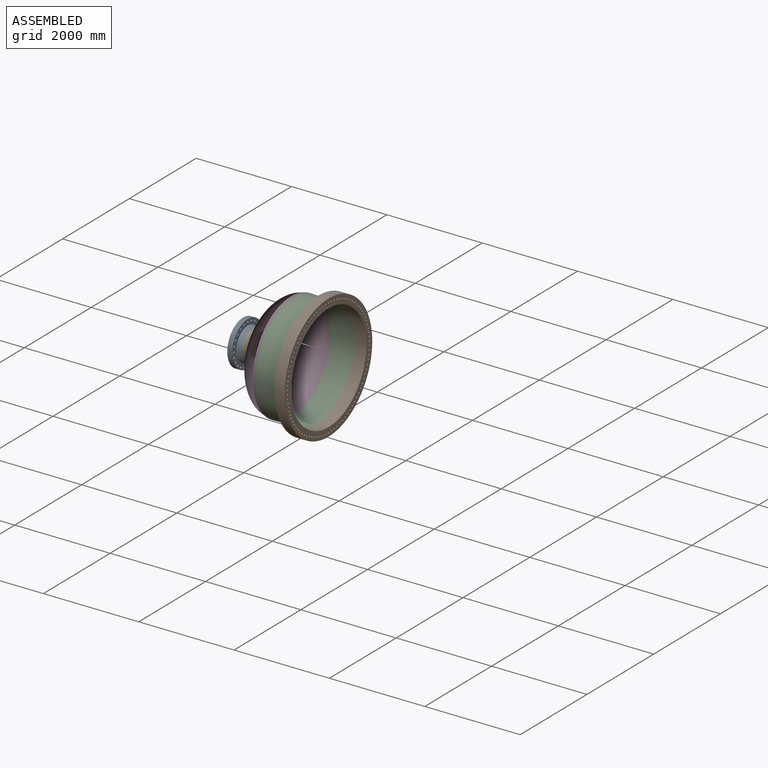
[diagram: assembled view]
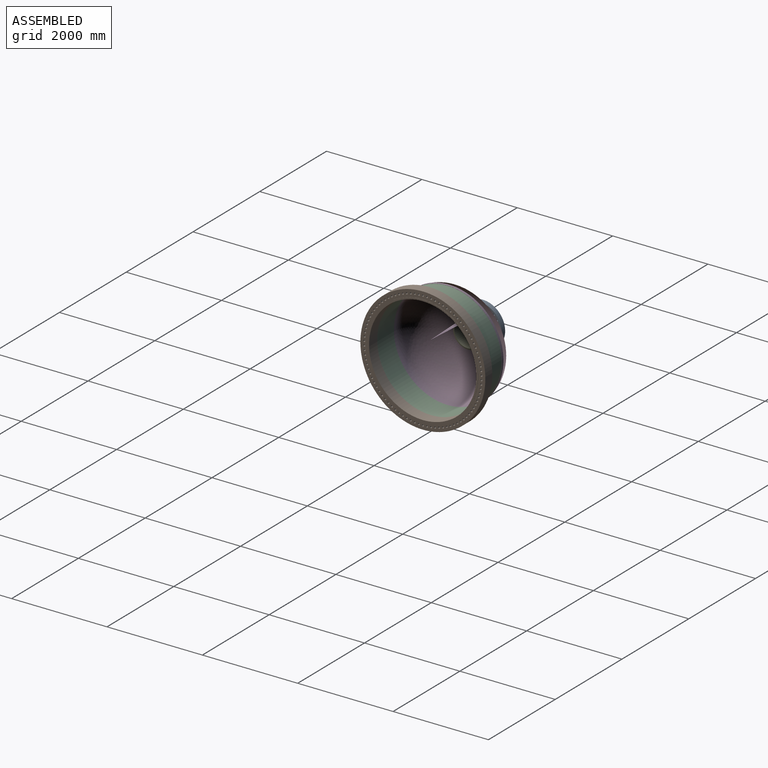
[diagram: assembled view, second angle]
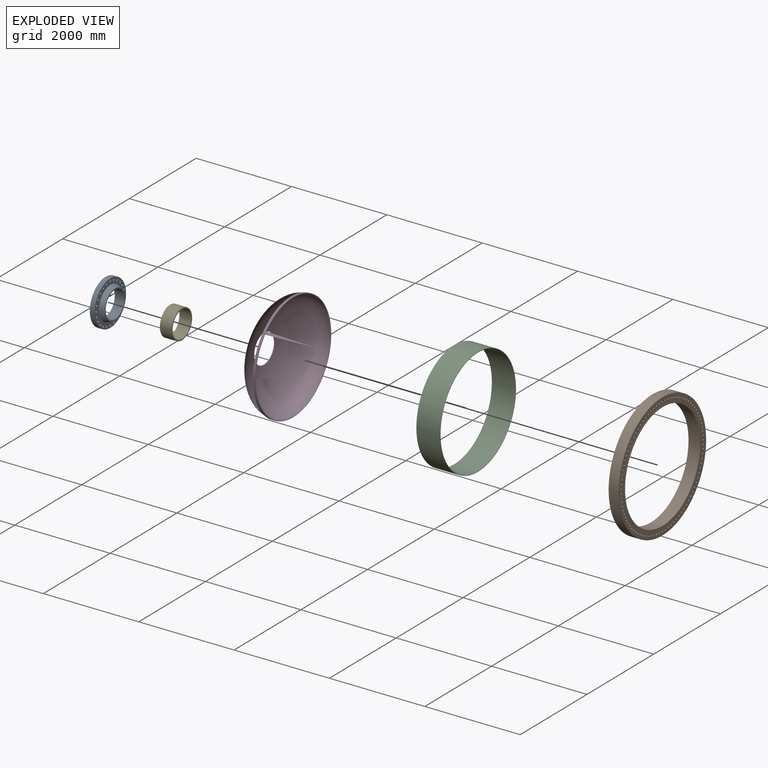
[diagram: exploded view]
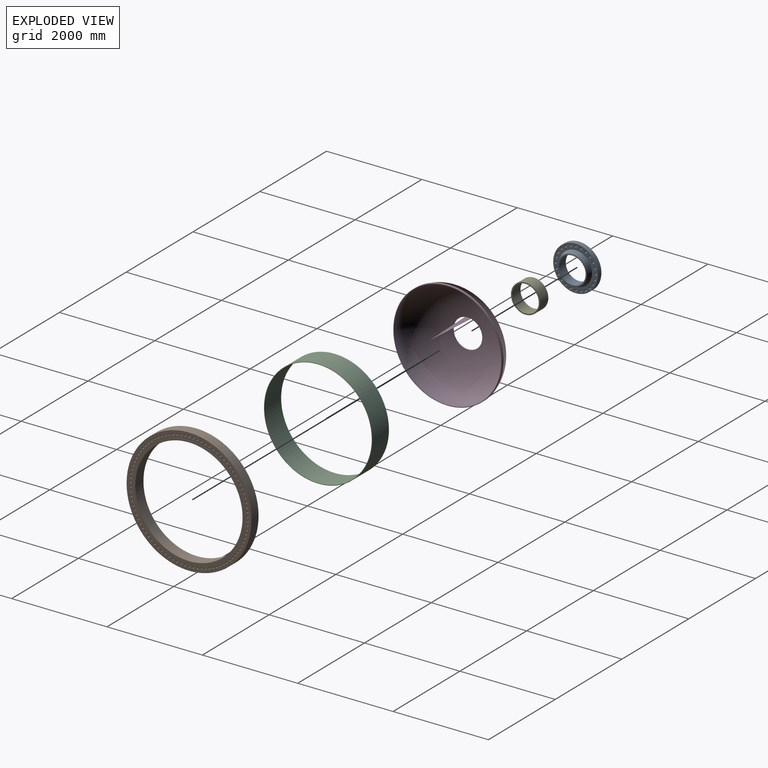
[diagram: exploded view, second angle]
ASSEMBLY  parts=5 mates=4
PART A: 32 faces, bbox 203.2x940x940 mm
  f0: cylinder r=280.2mm len=560.4mm, axis (-1,0,0), area 357743.5mm2, adj f1,f7
  f1: plane 609.4x609.4mm, normal (1,0,0), area 45019.2mm2, adj f0,f2
  f2: cone r=304.7mm half-angle=22.2deg, axis (-1,0,0), area 217412.8mm2, adj f1,f3
  f3: plane 940x940mm, normal (1,0,0), area 271022.1mm2, adj f2,f4,f8,f9,f10,f11,f12,f13
  f4: cylinder r=470mm len=940mm, axis (-1,0,0), area 300034.7mm2, adj f3,f5
  f5: plane 940x940mm, normal (-1,0,0), area 268851.2mm2, adj f4,f6,f8,f9,f10,f11,f12,f13
  f6: cylinder r=346mm len=692mm, axis (-1,0,0), area 6521.9mm2, adj f5,f7
  f7: plane 692x692mm, normal (-1,0,0), area 129446.1mm2, adj f0,f6
  f8: cylinder r=25.5mm len=101.6mm, axis (-1,0,0), area 16278.5mm2, adj f3,f5
  f9: cylinder r=25.5mm len=101.6mm, axis (-1,0,0), area 16278.5mm2, adj f3,f5
  f10: cylinder r=25.5mm len=101.6mm, axis (-1,0,0), area 16278.5mm2, adj f3,f5
  f11: cylinder r=25.5mm len=101.6mm, axis (-1,0,0), area 16278.5mm2, adj f3,f5
  f12: cylinder r=25.5mm len=101.6mm, axis (-1,0,0), area 16278.5mm2, adj f3,f5
  f13: cylinder r=25.5mm len=101.6mm, axis (-1,0,0), area 16278.5mm2, adj f3,f5
  f14: cylinder r=25.5mm len=101.6mm, axis (-1,0,0), area 16278.5mm2, adj f3,f5
  f15: cylinder r=25.5mm len=101.6mm, axis (-1,0,0), area 16278.5mm2, adj f3,f5
  f16: cylinder r=25.5mm len=101.6mm, axis (-1,0,0), area 16278.5mm2, adj f3,f5
  f17: cylinder r=25.5mm len=101.6mm, axis (-1,0,0), area 16278.5mm2, adj f3,f5
  f18: cylinder r=25.5mm len=101.6mm, axis (-1,0,0), area 16278.5mm2, adj f3,f5
  f19: cylinder r=25.5mm len=101.6mm, axis (-1,0,0), area 16278.5mm2, adj f3,f5
  f20: cylinder r=25.5mm len=101.6mm, axis (-1,0,0), area 16278.5mm2, adj f3,f5
  f21: cylinder r=25.5mm len=101.6mm, axis (-1,0,0), area 16278.5mm2, adj f3,f5
  f22: cylinder r=25.5mm len=101.6mm, axis (-1,0,0), area 16278.5mm2, adj f3,f5
  f23: cylinder r=25.5mm len=101.6mm, axis (-1,0,0), area 16278.5mm2, adj f3,f5
  f24: cylinder r=25.5mm len=101.6mm, axis (-1,0,0), area 16278.5mm2, adj f3,f5
  f25: cylinder r=25.5mm len=101.6mm, axis (-1,0,0), area 16278.5mm2, adj f3,f5
  f26: cylinder r=25.5mm len=101.6mm, axis (-1,0,0), area 16278.5mm2, adj f3,f5
  f27: cylinder r=25.5mm len=101.6mm, axis (-1,0,0), area 16278.5mm2, adj f3,f5
  f28: cylinder r=25.5mm len=101.6mm, axis (-1,0,0), area 16278.5mm2, adj f3,f5
  f29: cylinder r=25.5mm len=101.6mm, axis (-1,0,0), area 16278.5mm2, adj f3,f5
  f30: cylinder r=25.5mm len=101.6mm, axis (-1,0,0), area 16278.5mm2, adj f3,f5
  f31: cylinder r=25.5mm len=101.6mm, axis (-1,0,0), area 16278.5mm2, adj f3,f5
PART B: 98 faces, bbox 245x2620x2620 mm
  f0: plane 2320x2320mm, normal (-1,0,0), area 251248.9mm2, adj f1,f7
  f1: cylinder r=1125mm len=2250mm, axis (-1,0,0), area 1731803mm2, adj f0,f2
  f2: plane 2270x2270mm, normal (1,0,0), area 71000mm2, adj f1,f3
  f3: cone r=1135mm half-angle=26.6deg, axis (-1,0,0), area 240775.5mm2, adj f2,f4
  f4: plane 2620x2620mm, normal (1,0,0), area 1123433.5mm2, adj f3,f5,f8,f9,f10,f11,f12,f13
  f5: cylinder r=1310mm len=2620mm, axis (-1,0,0), area 1728504.3mm2, adj f4,f6
  f6: plane 2620x2620mm, normal (-1,0,0), area 1050862.7mm2, adj f5,f7,f8,f9,f10,f11,f12,f13
  f7: cylinder r=1160mm len=2320mm, axis (-1,0,0), area 36442.5mm2, adj f0,f6
  f8: cylinder r=20mm len=210mm, axis (-1,0,0), area 26389.4mm2, adj f4,f6
  f9: cylinder r=20mm len=210mm, axis (-1,0,0), area 26389.4mm2, adj f4,f6
  f10: cylinder r=20mm len=210mm, axis (-1,0,0), area 26389.4mm2, adj f4,f6
  f11: cylinder r=20mm len=210mm, axis (-1,0,0), area 26389.4mm2, adj f4,f6
  f12: cylinder r=20mm len=210mm, axis (-1,0,0), area 26389.4mm2, adj f4,f6
  f13: cylinder r=20mm len=210mm, axis (-1,0,0), area 26389.4mm2, adj f4,f6
  f14: cylinder r=20mm len=210mm, axis (-1,0,0), area 26389.4mm2, adj f4,f6
  f15: cylinder r=20mm len=210mm, axis (-1,0,0), area 26389.4mm2, adj f4,f6
  f16: cylinder r=20mm len=210mm, axis (-1,0,0), area 26389.4mm2, adj f4,f6
  f17: cylinder r=20mm len=210mm, axis (-1,0,0), area 26389.4mm2, adj f4,f6
  f18: cylinder r=20mm len=210mm, axis (-1,0,0), area 26389.4mm2, adj f4,f6
  f19: cylinder r=20mm len=210mm, axis (-1,0,0), area 26389.4mm2, adj f4,f6
  f20: cylinder r=20mm len=210mm, axis (-1,0,0), area 26389.4mm2, adj f4,f6
  f21: cylinder r=20mm len=210mm, axis (-1,0,0), area 26389.4mm2, adj f4,f6
  f22: cylinder r=20mm len=210mm, axis (-1,0,0), area 26389.4mm2, adj f4,f6
  f23: cylinder r=20mm len=210mm, axis (-1,0,0), area 26389.4mm2, adj f4,f6
  f24: cylinder r=20mm len=210mm, axis (-1,0,0), area 26389.4mm2, adj f4,f6
  f25: cylinder r=20mm len=210mm, axis (-1,0,0), area 26389.4mm2, adj f4,f6
  f26: cylinder r=20mm len=210mm, axis (-1,0,0), area 26389.4mm2, adj f4,f6
  f27: cylinder r=20mm len=210mm, axis (-1,0,0), area 26389.4mm2, adj f4,f6
  f28: cylinder r=20mm len=210mm, axis (-1,0,0), area 26389.4mm2, adj f4,f6
  f29: cylinder r=20mm len=210mm, axis (-1,0,0), area 26389.4mm2, adj f4,f6
  f30: cylinder r=20mm len=210mm, axis (-1,0,0), area 26389.4mm2, adj f4,f6
  f31: cylinder r=20mm len=210mm, axis (-1,0,0), area 26389.4mm2, adj f4,f6
  f32: cylinder r=20mm len=210mm, axis (-1,0,0), area 26389.4mm2, adj f4,f6
  f33: cylinder r=20mm len=210mm, axis (-1,0,0), area 26389.4mm2, adj f4,f6
  f34: cylinder r=20mm len=210mm, axis (-1,0,0), area 26389.4mm2, adj f4,f6
  f35: cylinder r=20mm len=210mm, axis (-1,0,0), area 26389.4mm2, adj f4,f6
  f36: cylinder r=20mm len=210mm, axis (-1,0,0), area 26389.4mm2, adj f4,f6
  f37: cylinder r=20mm len=210mm, axis (-1,0,0), area 26389.4mm2, adj f4,f6
  f38: cylinder r=20mm len=210mm, axis (-1,0,0), area 26389.4mm2, adj f4,f6
  f39: cylinder r=20mm len=210mm, axis (-1,0,0), area 26389.4mm2, adj f4,f6
  f40: cylinder r=20mm len=210mm, axis (-1,0,0), area 26389.4mm2, adj f4,f6
  f41: cylinder r=20mm len=210mm, axis (-1,0,0), area 26389.4mm2, adj f4,f6
  f42: cylinder r=20mm len=210mm, axis (-1,0,0), area 26389.4mm2, adj f4,f6
  f43: cylinder r=20mm len=210mm, axis (-1,0,0), area 26389.4mm2, adj f4,f6
  f44: cylinder r=20mm len=210mm, axis (-1,0,0), area 26389.4mm2, adj f4,f6
  f45: cylinder r=20mm len=210mm, axis (-1,0,0), area 26389.4mm2, adj f4,f6
  f46: cylinder r=20mm len=210mm, axis (-1,0,0), area 26389.4mm2, adj f4,f6
  f47: cylinder r=20mm len=210mm, axis (-1,0,0), area 26389.4mm2, adj f4,f6
  f48: cylinder r=20mm len=210mm, axis (-1,0,0), area 26389.4mm2, adj f4,f6
  f49: cylinder r=20mm len=210mm, axis (-1,0,0), area 26389.4mm2, adj f4,f6
  f50: cylinder r=20mm len=210mm, axis (-1,0,0), area 26389.4mm2, adj f4,f6
  f51: cylinder r=20mm len=210mm, axis (-1,0,0), area 26389.4mm2, adj f4,f6
  f52: cylinder r=20mm len=210mm, axis (-1,0,0), area 26389.4mm2, adj f4,f6
  f53: cylinder r=20mm len=210mm, axis (-1,0,0), area 26389.4mm2, adj f4,f6
  f54: cylinder r=20mm len=210mm, axis (-1,0,0), area 26389.4mm2, adj f4,f6
  f55: cylinder r=20mm len=210mm, axis (-1,0,0), area 26389.4mm2, adj f4,f6
  f56: cylinder r=20mm len=210mm, axis (-1,0,0), area 26389.4mm2, adj f4,f6
  f57: cylinder r=20mm len=210mm, axis (-1,0,0), area 26389.4mm2, adj f4,f6
  f58: cylinder r=20mm len=210mm, axis (-1,0,0), area 26389.4mm2, adj f4,f6
  f59: cylinder r=20mm len=210mm, axis (-1,0,0), area 26389.4mm2, adj f4,f6
  f60: cylinder r=20mm len=210mm, axis (-1,0,0), area 26389.4mm2, adj f4,f6
  f61: cylinder r=20mm len=210mm, axis (-1,0,0), area 26389.4mm2, adj f4,f6
  f62: cylinder r=20mm len=210mm, axis (-1,0,0), area 26389.4mm2, adj f4,f6
  f63: cylinder r=20mm len=210mm, axis (-1,0,0), area 26389.4mm2, adj f4,f6
  f64: cylinder r=20mm len=210mm, axis (-1,0,0), area 26389.4mm2, adj f4,f6
  f65: cylinder r=20mm len=210mm, axis (-1,0,0), area 26389.4mm2, adj f4,f6
  f66: cylinder r=20mm len=210mm, axis (-1,0,0), area 26389.4mm2, adj f4,f6
  f67: cylinder r=20mm len=210mm, axis (-1,0,0), area 26389.4mm2, adj f4,f6
  f68: cylinder r=20mm len=210mm, axis (-1,0,0), area 26389.4mm2, adj f4,f6
  f69: cylinder r=20mm len=210mm, axis (-1,0,0), area 26389.4mm2, adj f4,f6
  f70: cylinder r=20mm len=210mm, axis (-1,0,0), area 26389.4mm2, adj f4,f6
  f71: cylinder r=20mm len=210mm, axis (-1,0,0), area 26389.4mm2, adj f4,f6
  f72: cylinder r=20mm len=210mm, axis (-1,0,0), area 26389.4mm2, adj f4,f6
  f73: cylinder r=20mm len=210mm, axis (-1,0,0), area 26389.4mm2, adj f4,f6
  f74: cylinder r=20mm len=210mm, axis (-1,0,0), area 26389.4mm2, adj f4,f6
  f75: cylinder r=20mm len=210mm, axis (-1,0,0), area 26389.4mm2, adj f4,f6
  f76: cylinder r=20mm len=210mm, axis (-1,0,0), area 26389.4mm2, adj f4,f6
  f77: cylinder r=20mm len=210mm, axis (-1,0,0), area 26389.4mm2, adj f4,f6
  f78: cylinder r=20mm len=210mm, axis (-1,0,0), area 26389.4mm2, adj f4,f6
  f79: cylinder r=20mm len=210mm, axis (-1,0,0), area 26389.4mm2, adj f4,f6
  f80: cylinder r=20mm len=210mm, axis (-1,0,0), area 26389.4mm2, adj f4,f6
  f81: cylinder r=20mm len=210mm, axis (-1,0,0), area 26389.4mm2, adj f4,f6
  f82: cylinder r=20mm len=210mm, axis (-1,0,0), area 26389.4mm2, adj f4,f6
  f83: cylinder r=20mm len=210mm, axis (-1,0,0), area 26389.4mm2, adj f4,f6
  f84: cylinder r=20mm len=210mm, axis (-1,0,0), area 26389.4mm2, adj f4,f6
  f85: cylinder r=20mm len=210mm, axis (-1,0,0), area 26389.4mm2, adj f4,f6
  f86: cylinder r=20mm len=210mm, axis (-1,0,0), area 26389.4mm2, adj f4,f6
  f87: cylinder r=20mm len=210mm, axis (-1,0,0), area 26389.4mm2, adj f4,f6
  f88: cylinder r=20mm len=210mm, axis (-1,0,0), area 26389.4mm2, adj f4,f6
  f89: cylinder r=20mm len=210mm, axis (-1,0,0), area 26389.4mm2, adj f4,f6
  f90: cylinder r=20mm len=210mm, axis (-1,0,0), area 26389.4mm2, adj f4,f6
  f91: cylinder r=20mm len=210mm, axis (-1,0,0), area 26389.4mm2, adj f4,f6
  f92: cylinder r=20mm len=210mm, axis (-1,0,0), area 26389.4mm2, adj f4,f6
  f93: cylinder r=20mm len=210mm, axis (-1,0,0), area 26389.4mm2, adj f4,f6
  f94: cylinder r=20mm len=210mm, axis (-1,0,0), area 26389.4mm2, adj f4,f6
  f95: cylinder r=20mm len=210mm, axis (-1,0,0), area 26389.4mm2, adj f4,f6
  f96: cylinder r=20mm len=210mm, axis (-1,0,0), area 26389.4mm2, adj f4,f6
  f97: cylinder r=20mm len=210mm, axis (-1,0,0), area 26389.4mm2, adj f4,f6
PART C: 4 faces, bbox 500x2270x2270 mm
  f0: cylinder r=1125mm len=2250mm, axis (-1,0,0), area 3534291.7mm2, adj f1,f3
  f1: plane 2270x2270mm, normal (1,0,0), area 71000mm2, adj f0,f2
  f2: cylinder r=1135mm len=2270mm, axis (-1,0,0), area 3565707.7mm2, adj f1,f3
  f3: plane 2270x2270mm, normal (-1,0,0), area 71000mm2, adj f0,f2
PART D: 6 faces, bbox 616.2x2276x2276 mm
  f0: cylinder r=1125mm len=2250mm, axis (-1,0,0), area 353429.2mm2, adj f1,f2
  f1: revolved ~2250x2250mm, area 5241527.6mm2, adj f0,f3
  f2: plane 2276x2276mm, normal (1,0,0), area 92422.5mm2, adj f0,f4
  f3: cylinder r=304.8mm len=609.6mm, axis (-1,0,0), area 25151mm2, adj f1
  f4: cylinder r=1138mm len=2276mm, axis (-1,0,0), area 357513.2mm2, adj f2,f5
  f5: revolved ~2274.71x1137.68mm, area 0mm2, adj f4
PART E: 4 faces, bbox 250x609.6x609.6 mm
  f0: cylinder r=280.2mm len=560.4mm, axis (-1,0,0), area 440137.1mm2, adj f1,f3
  f1: plane 609.6x609.6mm, normal (1,0,0), area 45210.7mm2, adj f0,f2
  f2: cylinder r=304.8mm len=609.6mm, axis (-1,0,0), area 478778.7mm2, adj f1,f3
  f3: plane 609.6x609.6mm, normal (-1,0,0), area 45210.7mm2, adj f0,f2
PLACE A t=(-1710.95,-74.85,-61.35)mm
PLACE B rot(axis=(0,1,0),180deg) t=(436.2,-74.85,-61.35)mm
PLACE C t=(-308.8,-74.85,-61.35)mm
PLACE D t=(-358.8,-74.85,-61.35)mm
PLACE E t=(-1161.82,-74.85,-61.35)mm
MATE fastened B.f1 <-> C.f0  axis (-1,0,0) through (191.2,-74.85,-61.35)mm
MATE fastened E.f0 <-> D.f0  axis (1,0,0) through (-911.82,-74.85,-61.35)mm
MATE fastened E.f0 <-> A.f0  axis (-1,0,0) through (-1161.82,-74.85,-61.35)mm
MATE fastened D.f0 <-> C.f0  axis (1,0,0) through (-308.8,-74.85,-61.35)mm
